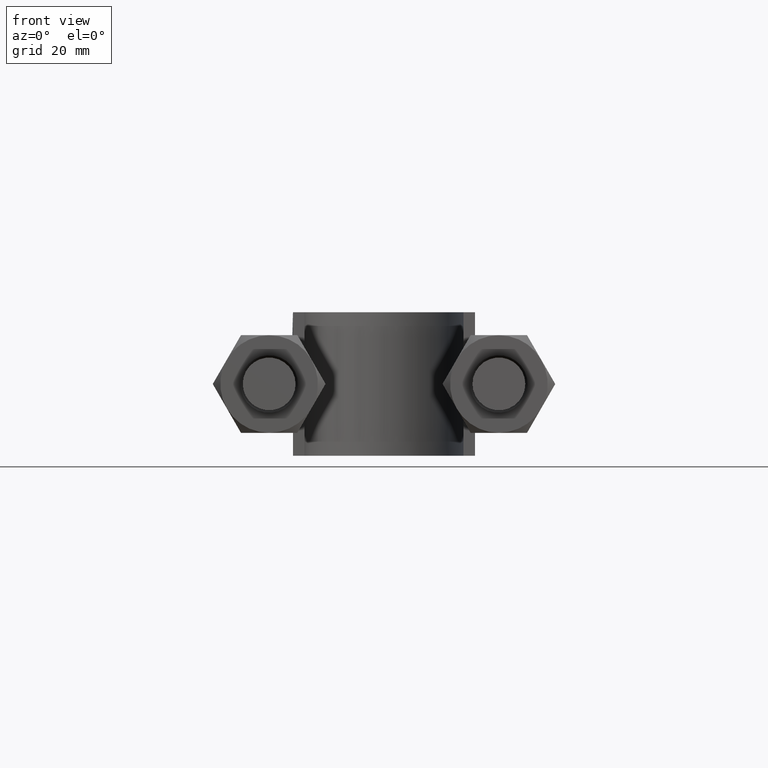
[diagram: clean part render]
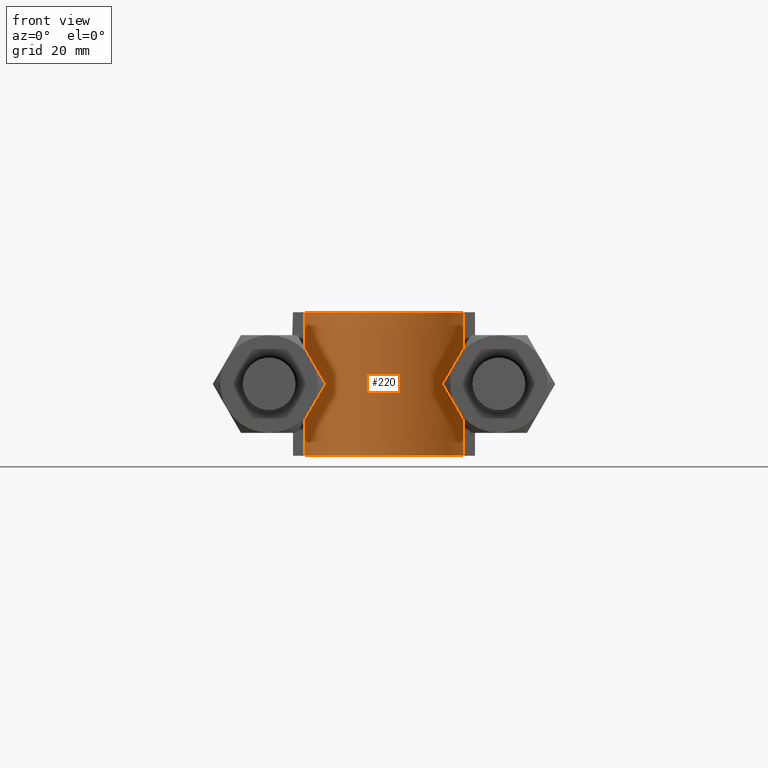
[diagram: same view with one face highlighted and labeled with its STEP entity id]
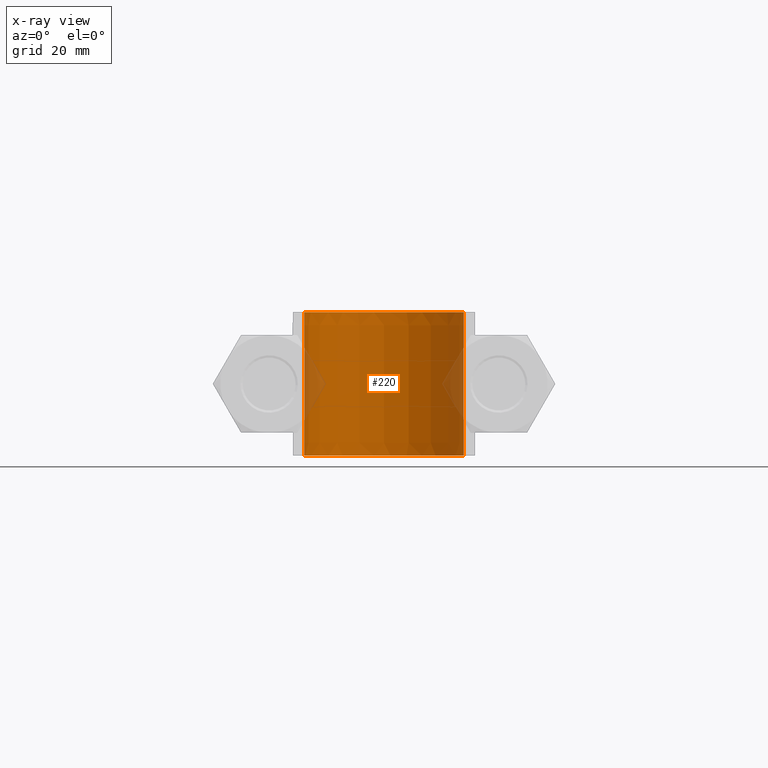
[diagram: x-ray of the same camera — body ghosted, the highlighted face saturated]
A machine part, front view. The second image highlights one B-rep face of the part: STEP entity #220.
The next image is the same camera in x-ray: the body ghosted, the highlighted face saturated — about 7% of this face is hidden behind the body in this view.
In plain terms, the highlighted face is a SurfaceOfExtrusion surface.
Its self-contained STEP definition (entity closure, byte-faithful):
#220 = ADVANCED_FACE( '', ( #285 ), #286, .T. );
#285 = FACE_OUTER_BOUND( '', #429, .T. );
#286 = SURFACE_OF_LINEAR_EXTRUSION( '', #430, #431 );
#429 = EDGE_LOOP( '', ( #1456, #1457, #1458, #1459 ) );
#430 = B_SPLINE_CURVE_WITH_KNOTS( '', 3, ( #1460, #1461, #1462, #1463, #1464, #1465, #1466, #1467, #1468, #1469, #1470, #1471, #1472, #1473, #1474, #1475, #1476, #1477 ), .UNSPECIFIED., .F., .F., ( 4, 3, 1, 1, 1, 1, 1, 1, 1, 1, 3, 4 ), ( 0.263975155279503, 1.00000000000000, 1.50000000000000, 1.75000000000000, 2.00000000000000, 3.00000000000000, 4.00000000000000, 5.00000000000000, 5.25000000000000, 5.50000000000000, 6.00000000000000, 6.73602484472050 ), .UNSPECIFIED. );
#431 = VECTOR( '', #1478, 1000.00000000000 );
#1456 = ORIENTED_EDGE( '', *, *, #1911, .F. );
#1457 = ORIENTED_EDGE( '', *, *, #1914, .T. );
#1458 = ORIENTED_EDGE( '', *, *, #1915, .T. );
#1459 = ORIENTED_EDGE( '', *, *, #1916, .F. );
#1460 = CARTESIAN_POINT( '', ( -13.8500000000000, 72.3000000000000, -59.0898515348929 ) );
#1461 = CARTESIAN_POINT( '', ( -13.8500000000000, 76.2500000000000, -59.0898515348929 ) );
#1462 = CARTESIAN_POINT( '', ( -13.8500000000000, 80.2000000000000, -59.0898515348929 ) );
#1463 = CARTESIAN_POINT( '', ( -13.8500000000000, 84.1500000000000, -59.0898515348929 ) );
#1464 = CARTESIAN_POINT( '', ( -13.8500000000000, 85.5764090913196, -59.0898515348929 ) );
#1465 = CARTESIAN_POINT( '', ( -13.4987711149041, 87.7652103300043, -59.0898515348929 ) );
#1466 = CARTESIAN_POINT( '', ( -12.3762577063388, 90.4805432618923, -59.0898515348929 ) );
#1467 = CARTESIAN_POINT( '', ( -10.1312776771716, 94.1665191788760, -59.0898515348929 ) );
#1468 = CARTESIAN_POINT( '', ( -4.56410324862349, 98.2237366283484, -59.0898515348929 ) );
#1469 = CARTESIAN_POINT( '', ( 4.56410324862353, 98.2237366283484, -59.0898515348929 ) );
#1470 = CARTESIAN_POINT( '', ( 10.1312776771716, 94.1665191788760, -59.0898515348929 ) );
#1471 = CARTESIAN_POINT( '', ( 12.3762577063388, 90.4805432618923, -59.0898515348929 ) );
#1472 = CARTESIAN_POINT( '', ( 13.4987711149041, 87.7652103300043, -59.0898515348929 ) );
#1473 = CARTESIAN_POINT( '', ( 13.8500000000000, 85.5764090913196, -59.0898515348929 ) );
#1474 = CARTESIAN_POINT( '', ( 13.8500000000000, 84.1500000000000, -59.0898515348929 ) );
#1475 = CARTESIAN_POINT( '', ( 13.8500000000000, 80.2000000000000, -59.0898515348929 ) );
#1476 = CARTESIAN_POINT( '', ( 13.8500000000000, 76.2500000000000, -59.0898515348929 ) );
#1477 = CARTESIAN_POINT( '', ( 13.8500000000000, 72.3000000000000, -59.0898515348929 ) );
#1478 = DIRECTION( '', ( 0.000000000000000, 0.000000000000000, 1.00000000000000 ) );
#1911 = EDGE_CURVE( '', #2038, #2040, #2041, .T. );
#1914 = EDGE_CURVE( '', #2038, #2045, #2046, .T. );
#1915 = EDGE_CURVE( '', #2045, #2047, #2048, .T. );
#1916 = EDGE_CURVE( '', #2040, #2047, #2049, .T. );
#2038 = VERTEX_POINT( '', #2259 );
#2040 = VERTEX_POINT( '', #2262 );
#2041 = LINE( '', #2263, #2264 );
#2045 = VERTEX_POINT( '', #2299 );
#2046 = B_SPLINE_CURVE_WITH_KNOTS( '', 3, ( #2300, #2301, #2302, #2303, #2304, #2305, #2306, #2307, #2308, #2309, #2310, #2311, #2312, #2313, #2314, #2315, #2316, #2317 ), .UNSPECIFIED., .F., .F., ( 4, 3, 1, 1, 1, 1, 1, 1, 1, 1, 3, 4 ), ( 0.263975155279503, 1.00000000000000, 1.50000000000000, 1.75000000000000, 2.00000000000000, 3.00000000000000, 4.00000000000000, 5.00000000000000, 5.25000000000000, 5.50000000000000, 6.00000000000000, 6.73602484472050 ), .UNSPECIFIED. );
#2047 = VERTEX_POINT( '', #2318 );
#2048 = LINE( '', #2319, #2320 );
#2049 = B_SPLINE_CURVE_WITH_KNOTS( '', 3, ( #2321, #2322, #2323, #2324, #2325, #2326, #2327, #2328, #2329, #2330, #2331, #2332, #2333, #2334, #2335, #2336, #2337, #2338 ), .UNSPECIFIED., .F., .F., ( 4, 3, 1, 1, 1, 1, 1, 1, 1, 1, 3, 4 ), ( 0.263975155279503, 1.00000000000000, 1.50000000000000, 1.75000000000000, 2.00000000000000, 3.00000000000000, 4.00000000000000, 5.00000000000000, 5.25000000000000, 5.50000000000000, 6.00000000000000, 6.73602484472050 ), .UNSPECIFIED. );
#2259 = CARTESIAN_POINT( '', ( -13.8500000000000, 72.3000000000000, -12.5000000000000 ) );
#2262 = CARTESIAN_POINT( '', ( -13.8500000000000, 72.3000000000000, 12.5000000000000 ) );
#2263 = CARTESIAN_POINT( '', ( -13.8500000000000, 72.3000000000000, -59.0898515348929 ) );
#2264 = VECTOR( '', #2820, 1000.00000000000 );
#2299 = CARTESIAN_POINT( '', ( 13.8500000000000, 72.3000000000000, -12.5000000000000 ) );
#2300 = CARTESIAN_POINT( '', ( -13.8500000000000, 72.3000000000000, -12.5000000000000 ) );
#2301 = CARTESIAN_POINT( '', ( -13.8500000000000, 76.2500000000000, -12.5000000000000 ) );
#2302 = CARTESIAN_POINT( '', ( -13.8500000000000, 80.2000000000000, -12.5000000000000 ) );
#2303 = CARTESIAN_POINT( '', ( -13.8500000000000, 84.1500000000000, -12.5000000000000 ) );
#2304 = CARTESIAN_POINT( '', ( -13.8500000000000, 85.5764090913196, -12.5000000000000 ) );
#2305 = CARTESIAN_POINT( '', ( -13.4987711149041, 87.7652103300043, -12.5000000000000 ) );
#2306 = CARTESIAN_POINT( '', ( -12.3762577063388, 90.4805432618923, -12.5000000000000 ) );
#2307 = CARTESIAN_POINT( '', ( -10.1312776771716, 94.1665191788760, -12.5000000000000 ) );
#2308 = CARTESIAN_POINT( '', ( -4.56410324862349, 98.2237366283484, -12.5000000000000 ) );
#2309 = CARTESIAN_POINT( '', ( 4.56410324862353, 98.2237366283484, -12.5000000000000 ) );
#2310 = CARTESIAN_POINT( '', ( 10.1312776771716, 94.1665191788760, -12.5000000000000 ) );
#2311 = CARTESIAN_POINT( '', ( 12.3762577063388, 90.4805432618923, -12.5000000000000 ) );
#2312 = CARTESIAN_POINT( '', ( 13.4987711149041, 87.7652103300043, -12.5000000000000 ) );
#2313 = CARTESIAN_POINT( '', ( 13.8500000000000, 85.5764090913196, -12.5000000000000 ) );
#2314 = CARTESIAN_POINT( '', ( 13.8500000000000, 84.1500000000000, -12.5000000000000 ) );
#2315 = CARTESIAN_POINT( '', ( 13.8500000000000, 80.2000000000000, -12.5000000000000 ) );
#2316 = CARTESIAN_POINT( '', ( 13.8500000000000, 76.2500000000000, -12.5000000000000 ) );
#2317 = CARTESIAN_POINT( '', ( 13.8500000000000, 72.3000000000000, -12.5000000000000 ) );
#2318 = CARTESIAN_POINT( '', ( 13.8500000000000, 72.3000000000000, 12.5000000000000 ) );
#2319 = CARTESIAN_POINT( '', ( 13.8500000000000, 72.3000000000000, -59.0898515348929 ) );
#2320 = VECTOR( '', #2822, 1000.00000000000 );
#2321 = CARTESIAN_POINT( '', ( -13.8500000000000, 72.3000000000000, 12.5000000000000 ) );
#2322 = CARTESIAN_POINT( '', ( -13.8500000000000, 76.2500000000000, 12.5000000000000 ) );
#2323 = CARTESIAN_POINT( '', ( -13.8500000000000, 80.2000000000000, 12.5000000000000 ) );
#2324 = CARTESIAN_POINT( '', ( -13.8500000000000, 84.1500000000000, 12.5000000000000 ) );
#2325 = CARTESIAN_POINT( '', ( -13.8500000000000, 85.5764090913196, 12.5000000000000 ) );
#2326 = CARTESIAN_POINT( '', ( -13.4987711149041, 87.7652103300043, 12.5000000000000 ) );
#2327 = CARTESIAN_POINT( '', ( -12.3762577063388, 90.4805432618923, 12.5000000000000 ) );
#2328 = CARTESIAN_POINT( '', ( -10.1312776771716, 94.1665191788760, 12.5000000000000 ) );
#2329 = CARTESIAN_POINT( '', ( -4.56410324862349, 98.2237366283484, 12.5000000000000 ) );
#2330 = CARTESIAN_POINT( '', ( 4.56410324862353, 98.2237366283484, 12.5000000000000 ) );
#2331 = CARTESIAN_POINT( '', ( 10.1312776771716, 94.1665191788760, 12.5000000000000 ) );
#2332 = CARTESIAN_POINT( '', ( 12.3762577063388, 90.4805432618923, 12.5000000000000 ) );
#2333 = CARTESIAN_POINT( '', ( 13.4987711149041, 87.7652103300043, 12.5000000000000 ) );
#2334 = CARTESIAN_POINT( '', ( 13.8500000000000, 85.5764090913196, 12.5000000000000 ) );
#2335 = CARTESIAN_POINT( '', ( 13.8500000000000, 84.1500000000000, 12.5000000000000 ) );
#2336 = CARTESIAN_POINT( '', ( 13.8500000000000, 80.2000000000000, 12.5000000000000 ) );
#2337 = CARTESIAN_POINT( '', ( 13.8500000000000, 76.2500000000000, 12.5000000000000 ) );
#2338 = CARTESIAN_POINT( '', ( 13.8500000000000, 72.3000000000000, 12.5000000000000 ) );
#2820 = DIRECTION( '', ( 0.000000000000000, 0.000000000000000, 1.00000000000000 ) );
#2822 = DIRECTION( '', ( 0.000000000000000, 0.000000000000000, 1.00000000000000 ) );